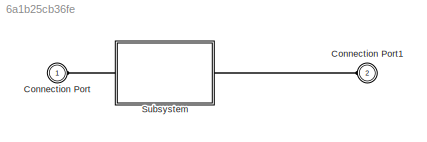
MODEL slx_6a1b25cb36fe
KIND model
CONFIG AbsTol = auto
CONFIG EnableMultiTasking = off
CONFIG FixedStep = auto
CONFIG MaxStep = auto
CONFIG MinStep = auto
CONFIG RelTol = 1e-3
CONFIG SampleTimeConstraint = Unconstrained
CONFIG Solver = VariableStepAuto
CONFIG SolverName = VariableStepAuto
CONFIG StartTime = 0.0
CONFIG StopTime = 10.0
BLOCK [PMIOPort] Connection Port
  Port = 1
  Side = Left
BLOCK [PMIOPort] Connection Port1
  Port = 2
  Side = Left
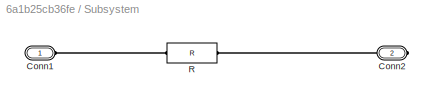
BLOCK [SubSystem] Subsystem
  Ports = [0, 0, 0, 0, 0, 1, 1]
  RequestExecContextInheritance = off
  Variant = off
BLOCK [PMIOPort] Subsystem/Conn1
  Port = 1
  Side = Left
BLOCK [PMIOPort] Subsystem/Conn2
  Port = 2
  Side = Right
BLOCK [Reference] Subsystem/R  REF=simrfV2elements/R
  Ports = [0, 0, 0, 0, 0, 1, 1]
  SourceBlock = simrfV2elements/R
  SourceProductBaseCode = RB
  SourceProductName = SimRF
  SourceType = Resistor
PLINE Connection Port1:RConn1 -- Subsystem:RConn1
PLINE Connection Port:RConn1 -- Subsystem:LConn1
PLINE Subsystem/Conn1:RConn1 -- Subsystem/R:LConn1
PLINE Subsystem/Conn2:RConn1 -- Subsystem/R:RConn1
